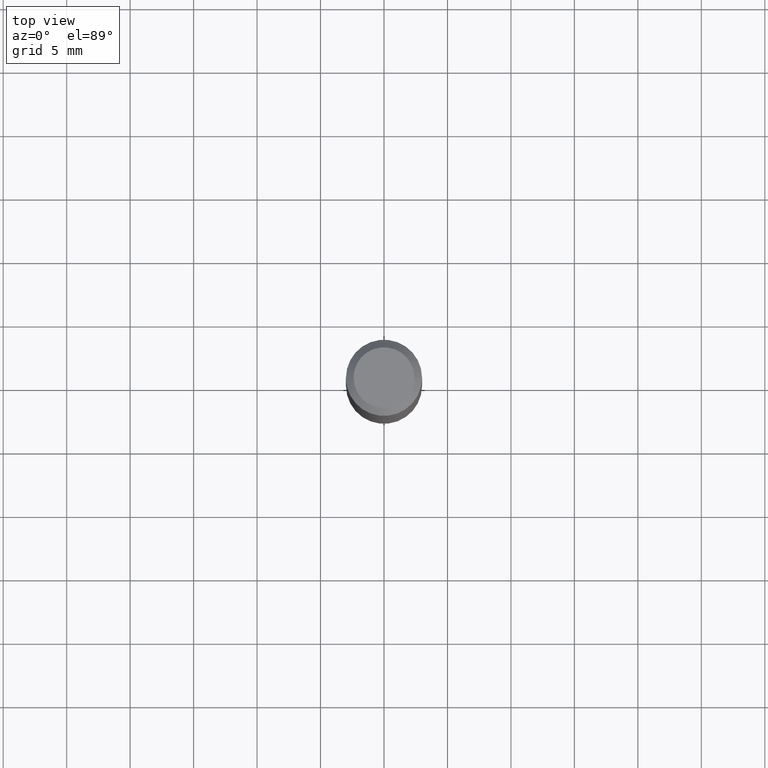
[diagram: clean part render]
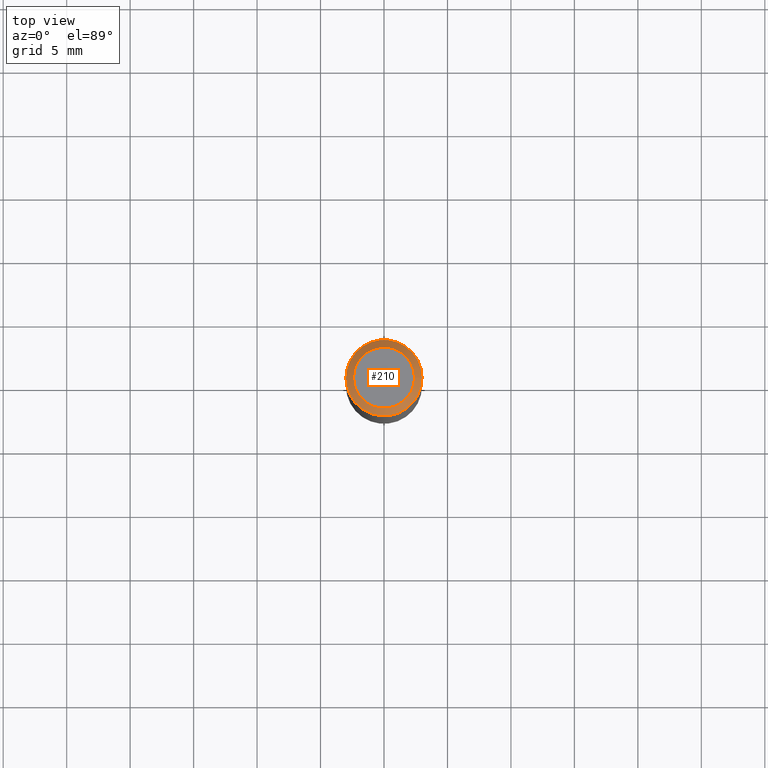
[diagram: same view with one face highlighted and labeled with its STEP entity id]
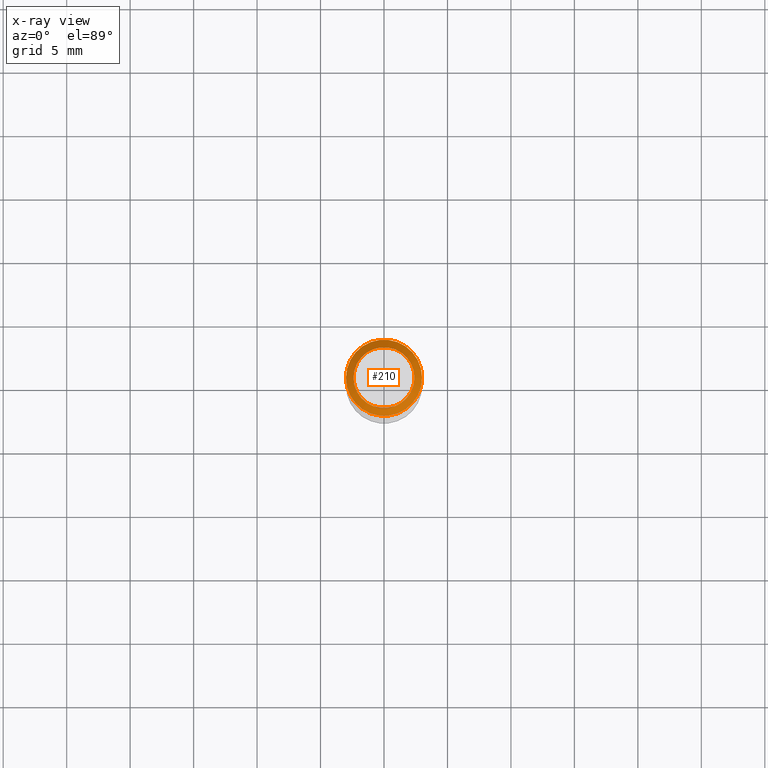
[diagram: x-ray of the same camera — body ghosted, the highlighted face saturated]
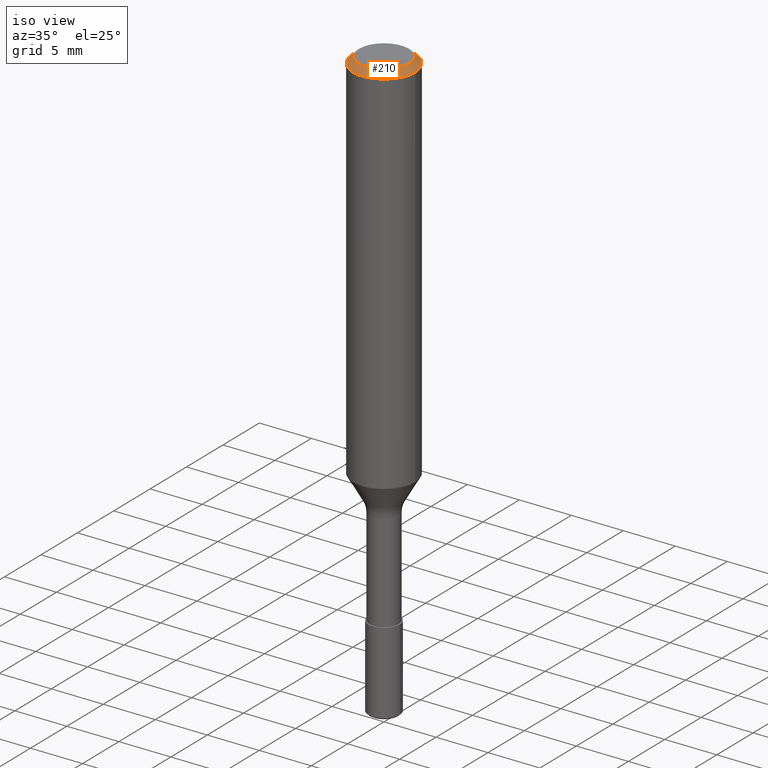
[diagram: same view with one face highlighted and labeled with its STEP entity id]
A machine part, top view. The second image highlights one B-rep face of the part: STEP entity #210.
The next image is the same camera in x-ray: the body ghosted, the highlighted face saturated — about 0% of this face is hidden behind the body in this view.
A second angle (iso view) of the same face is appended — the face is thin or edge-on in the first view.
In plain terms, the highlighted conical surface has half-angle 45 deg.
Its self-contained STEP definition (entity closure, byte-faithful):
#2 = VERTEX_POINT ( 'NONE', #264 ) ;
#43 = FACE_OUTER_BOUND ( 'NONE', #65, .T. ) ;
#48 = CARTESIAN_POINT ( 'NONE',  ( 2.399999999999998135, 0.0000000000000000000, -1.675911042644702748E-14 ) ) ;
#65 = EDGE_LOOP ( 'NONE', ( #205 ) ) ;
#82 = DIRECTION ( 'NONE',  ( 1.000000000000000000, 0.0000000000000000000, -6.975033976323412122E-15 ) ) ;
#85 = DIRECTION ( 'NONE',  ( -6.982962677686266711E-15, 0.0000000000000000000, -1.000000000000000000 ) ) ;
#90 = FACE_BOUND ( 'NONE', #276, .T. ) ;
#94 = CIRCLE ( 'NONE', #279, 2.399999999999998135 ) ;
#126 = EDGE_CURVE ( 'NONE', #238, #238, #94, .T. ) ;
#147 = ORIENTED_EDGE ( 'NONE', *, *, #126, .F. ) ;
#148 = CARTESIAN_POINT ( 'NONE',  ( -4.189777606611783692E-15, 0.0000000000000000000, -0.6000000000000033085 ) ) ;
#171 = EDGE_CURVE ( 'NONE', #2, #2, #207, .T. ) ;
#191 = AXIS2_PLACEMENT_3D ( 'NONE', #148, #231, #82 ) ;
#200 = AXIS2_PLACEMENT_3D ( 'NONE', #278, #85, #253 ) ;
#205 = ORIENTED_EDGE ( 'NONE', *, *, #171, .T. ) ;
#207 = CIRCLE ( 'NONE', #191, 3.000000000000000000 ) ;
#210 = ADVANCED_FACE ( 'NONE', ( #43, #90 ), #283, .T. ) ;
#231 = DIRECTION ( 'NONE',  ( 6.982962677686266711E-15, 0.0000000000000000000, 1.000000000000000000 ) ) ;
#238 = VERTEX_POINT ( 'NONE', #48 ) ;
#248 = DIRECTION ( 'NONE',  ( 1.000000000000000000, 0.0000000000000000000, -6.982962677686266711E-15 ) ) ;
#253 = DIRECTION ( 'NONE',  ( -1.000000000000000000, 0.0000000000000000000, 6.982962677686266711E-15 ) ) ;
#264 = CARTESIAN_POINT ( 'NONE',  ( 2.999999999999995559, 0.0000000000000000000, -0.6000000000000241807 ) ) ;
#268 = CARTESIAN_POINT ( 'NONE',  ( 0.0000000000000000000, 0.0000000000000000000, 0.0000000000000000000 ) ) ;
#276 = EDGE_LOOP ( 'NONE', ( #147 ) ) ;
#277 = DIRECTION ( 'NONE',  ( 6.982962677686266711E-15, 0.0000000000000000000, 1.000000000000000000 ) ) ;
#278 = CARTESIAN_POINT ( 'NONE',  ( 0.0000000000000000000, 0.0000000000000000000, 0.0000000000000000000 ) ) ;
#279 = AXIS2_PLACEMENT_3D ( 'NONE', #268, #277, #248 ) ;
#283 = CONICAL_SURFACE ( 'NONE', #200, 2.399999999999998135, 0.7853981633974472798 ) ;